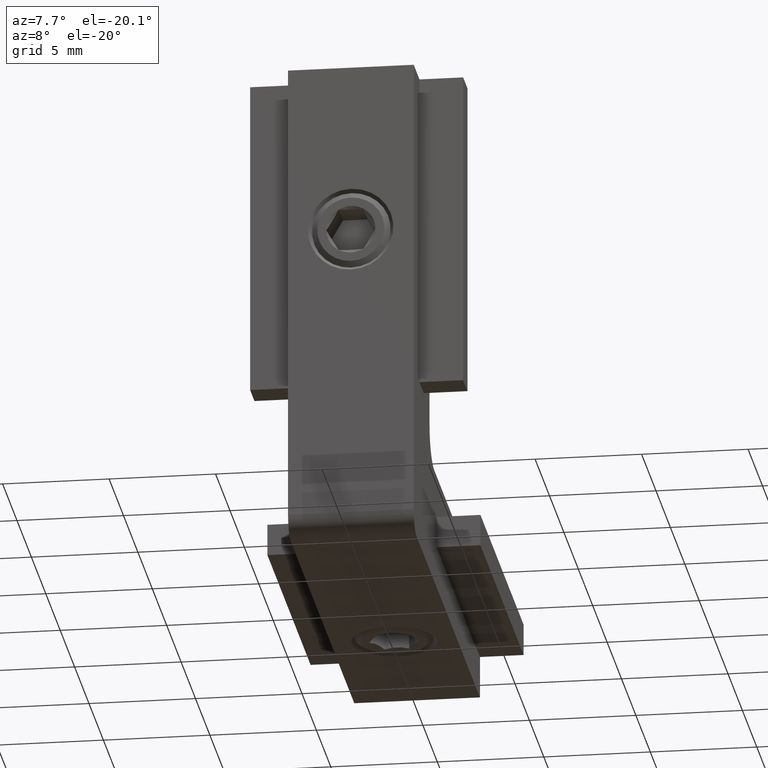
[diagram: clean part render]
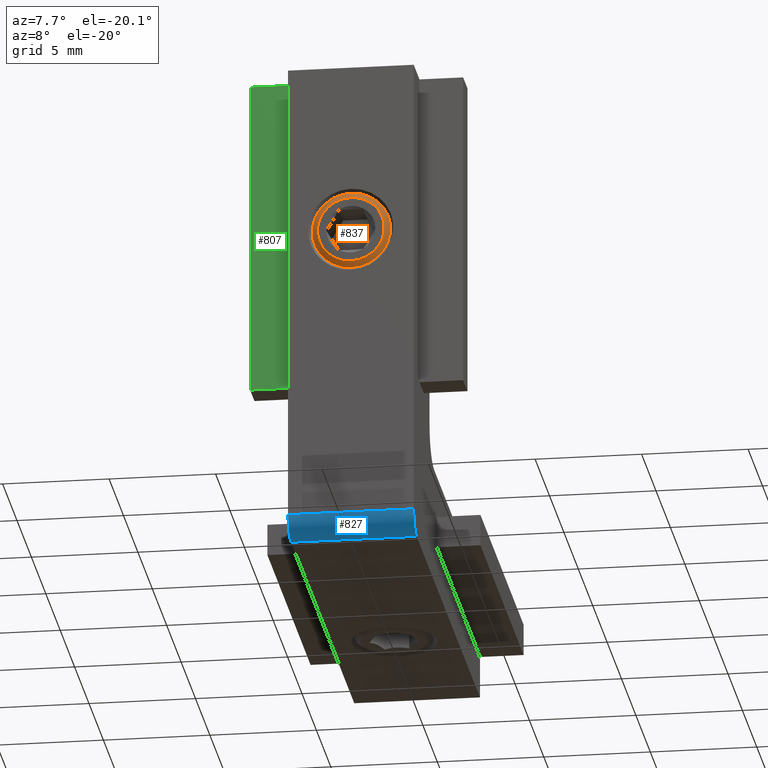
[diagram: same view with three faces highlighted in distinct colors, each labeled with its STEP entity id]
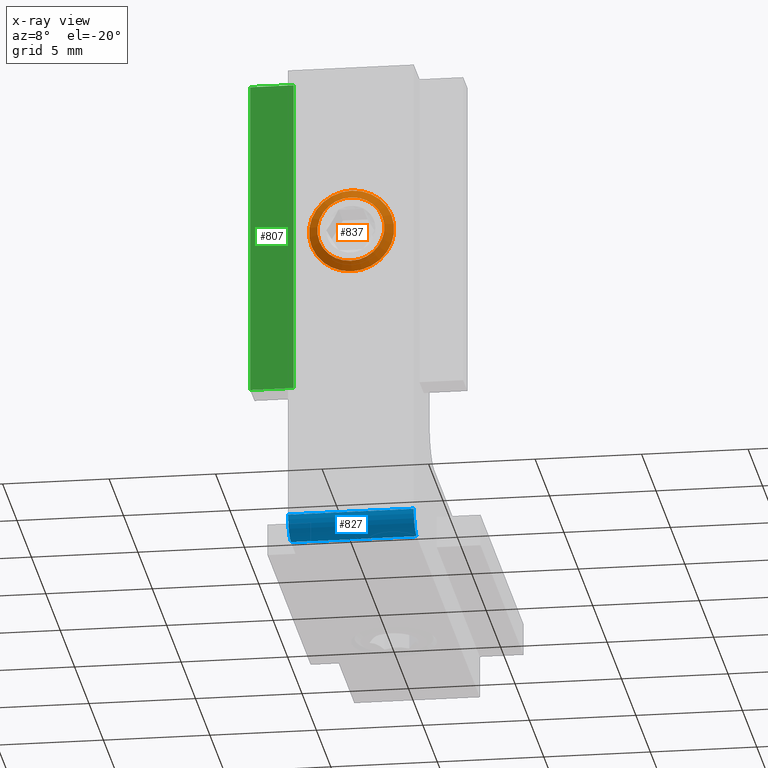
[diagram: x-ray of the same camera — body ghosted, the three highlighted faces saturated]
A machine part, auxiliary view with three faces highlighted in distinct colors.
The next image is the same camera in x-ray (body ghosted, the three faces saturated) — at least one of them is partly hidden behind the body in this view.
Their STEP definitions:

[orange] entity #837 — the highlighted conical surface has half-angle 60 deg.
#56=CONICAL_SURFACE('',#935,2.,1.0471975511966);
#394=ORIENTED_EDGE('',*,*,#528,.F.);
#395=ORIENTED_EDGE('',*,*,#527,.T.);
#527=EDGE_CURVE('',#605,#605,#633,.T.);
#528=EDGE_CURVE('',#606,#606,#634,.T.);
#605=VERTEX_POINT('',#1399);
#606=VERTEX_POINT('',#1402);
#633=CIRCLE('',#934,2.);
#634=CIRCLE('',#936,1.5705);
#688=EDGE_LOOP('',(#394));
#689=EDGE_LOOP('',(#395));
#752=FACE_BOUND('',#688,.T.);
#753=FACE_BOUND('',#689,.T.);
#837=ADVANCED_FACE('',(#752,#753),#56,.T.);
#934=AXIS2_PLACEMENT_3D('',#1398,#1141,#1142);
#935=AXIS2_PLACEMENT_3D('',#1400,#1143,#1144);
#936=AXIS2_PLACEMENT_3D('',#1401,#1145,#1146);
#1141=DIRECTION('',(-1.,-6.12323399573677E-17,0.));
#1142=DIRECTION('',(6.12323399573677E-17,-1.,0.));
#1143=DIRECTION('',(1.,6.12323399573677E-17,0.));
#1144=DIRECTION('',(-6.12323399573677E-17,1.,0.));
#1145=DIRECTION('',(-1.,-6.12323399573677E-17,0.));
#1146=DIRECTION('',(6.12323399573677E-17,-1.,0.));
#1398=CARTESIAN_POINT('',(0.247971940616944,1.51839021677449E-17,0.));
#1399=CARTESIAN_POINT('',(0.247971940616944,-2.,0.));
#1400=CARTESIAN_POINT('',(0.247971940616944,1.51839021677449E-17,0.));
#1401=CARTESIAN_POINT('',(0.,0.,0.));
#1402=CARTESIAN_POINT('',(9.61653899030459E-17,-1.5705,0.));

[blue] entity #827 — the highlighted cylindrical surface (edge-blend (fillet) strip) has radius 1 mm, axis along (-1, 0, 0).
#43=CYLINDRICAL_SURFACE('',#915,1.);
#57=LINE('',#1183,#137);
#77=LINE('',#1232,#157);
#137=VECTOR('',#953,1000.);
#157=VECTOR('',#987,1000.);
#373=ORIENTED_EDGE('',*,*,#443,.T.);
#374=ORIENTED_EDGE('',*,*,#434,.F.);
#375=ORIENTED_EDGE('',*,*,#461,.F.);
#376=ORIENTED_EDGE('',*,*,#458,.T.);
#434=EDGE_CURVE('',#542,#543,#57,.T.);
#443=EDGE_CURVE('',#551,#543,#615,.T.);
#458=EDGE_CURVE('',#564,#551,#77,.T.);
#461=EDGE_CURVE('',#564,#542,#618,.T.);
#542=VERTEX_POINT('',#1184);
#543=VERTEX_POINT('',#1185);
#551=VERTEX_POINT('',#1204);
#564=VERTEX_POINT('',#1233);
#615=CIRCLE('',#877,1.);
#618=CIRCLE('',#882,1.);
#676=EDGE_LOOP('',(#373,#374,#375,#376));
#740=FACE_BOUND('',#676,.T.);
#827=ADVANCED_FACE('',(#740),#43,.T.);
#877=AXIS2_PLACEMENT_3D('',#1203,#967,#968);
#882=AXIS2_PLACEMENT_3D('',#1238,#992,#993);
#915=AXIS2_PLACEMENT_3D('',#1347,#1103,#1104);
#953=DIRECTION('',(-1.,0.,0.));
#967=DIRECTION('',(1.,0.,0.));
#968=DIRECTION('',(0.,0.,-1.));
#987=DIRECTION('',(-1.,0.,0.));
#992=DIRECTION('',(1.,0.,0.));
#993=DIRECTION('',(0.,0.,-1.));
#1103=DIRECTION('',(-1.,0.,0.));
#1104=DIRECTION('',(0.,0.,1.));
#1183=CARTESIAN_POINT('',(2.95,1.,0.));
#1184=CARTESIAN_POINT('',(2.95,1.,0.));
#1185=CARTESIAN_POINT('',(-2.95,1.,0.));
#1203=CARTESIAN_POINT('',(-2.95,1.,1.));
#1204=CARTESIAN_POINT('',(-2.95,0.,1.));
#1232=CARTESIAN_POINT('',(2.95,0.,1.));
#1233=CARTESIAN_POINT('',(2.95,0.,1.));
#1238=CARTESIAN_POINT('',(2.95,1.,1.));
#1347=CARTESIAN_POINT('',(2.95,1.,1.));

[green] entity #807 — the highlighted planar face has unit normal (0, -1, 0).
#67=LINE('',#1209,#147);
#93=LINE('',#1266,#173);
#103=LINE('',#1286,#183);
#105=LINE('',#1290,#185);
#147=VECTOR('',#971,1000.);
#173=VECTOR('',#1011,1000.);
#183=VECTOR('',#1031,1000.);
#185=VECTOR('',#1035,1000.);
#296=ORIENTED_EDGE('',*,*,#446,.F.);
#297=ORIENTED_EDGE('',*,*,#476,.F.);
#298=ORIENTED_EDGE('',*,*,#488,.F.);
#299=ORIENTED_EDGE('',*,*,#486,.T.);
#446=EDGE_CURVE('',#553,#554,#67,.T.);
#476=EDGE_CURVE('',#577,#553,#93,.T.);
#486=EDGE_CURVE('',#583,#554,#103,.T.);
#488=EDGE_CURVE('',#583,#577,#105,.T.);
#553=VERTEX_POINT('',#1208);
#554=VERTEX_POINT('',#1210);
#577=VERTEX_POINT('',#1265);
#583=VERTEX_POINT('',#1287);
#649=EDGE_LOOP('',(#296,#297,#298,#299));
#713=FACE_BOUND('',#649,.T.);
#774=PLANE('',#890);
#807=ADVANCED_FACE('',(#713),#774,.T.);
#890=AXIS2_PLACEMENT_3D('',#1289,#1033,#1034);
#971=DIRECTION('',(0.,0.,-1.));
#1011=DIRECTION('',(1.,0.,0.));
#1031=DIRECTION('',(1.,0.,0.));
#1033=DIRECTION('',(0.,-1.,0.));
#1034=DIRECTION('',(0.,0.,-1.));
#1035=DIRECTION('',(0.,0.,1.));
#1208=CARTESIAN_POINT('',(-2.95,2.,23.));
#1209=CARTESIAN_POINT('',(-2.95,2.,23.));
#1210=CARTESIAN_POINT('',(-2.95,2.,8.));
#1265=CARTESIAN_POINT('',(-5.,2.,23.));
#1266=CARTESIAN_POINT('',(-5.,2.,23.));
#1286=CARTESIAN_POINT('',(-5.,2.,8.));
#1287=CARTESIAN_POINT('',(-5.,2.,8.));
#1289=CARTESIAN_POINT('',(-5.,2.,8.));
#1290=CARTESIAN_POINT('',(-5.,2.,8.));